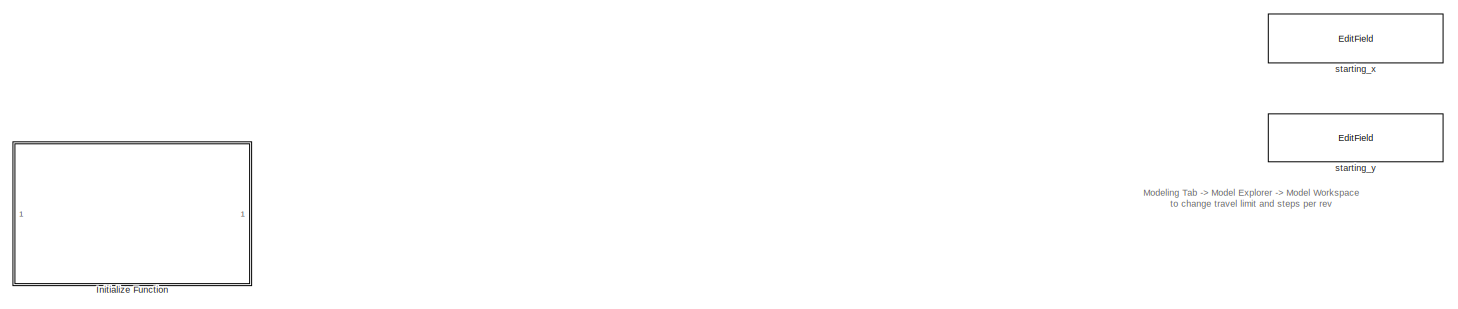
[diagram: root canvas - part 1/5, top center region]
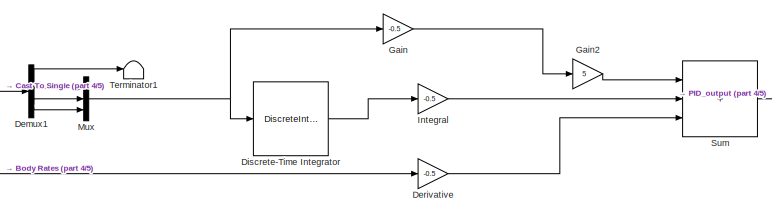
[diagram: root canvas - part 2/5, middle right region]
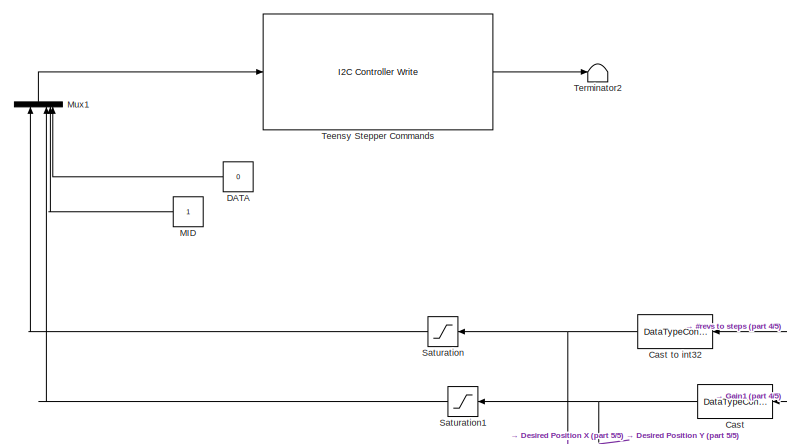
[diagram: root canvas - part 3/5, middle left region]
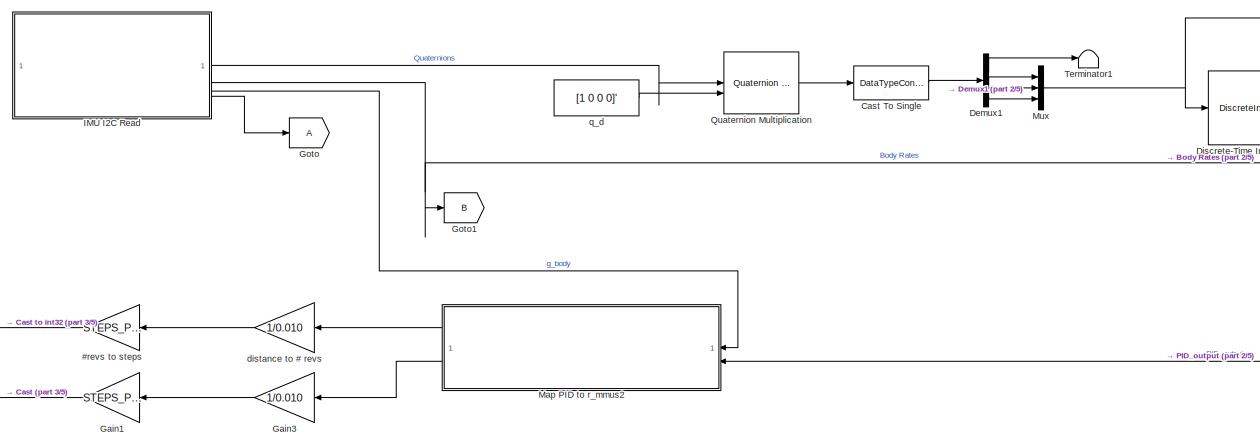
[diagram: root canvas - part 4/5, central region]
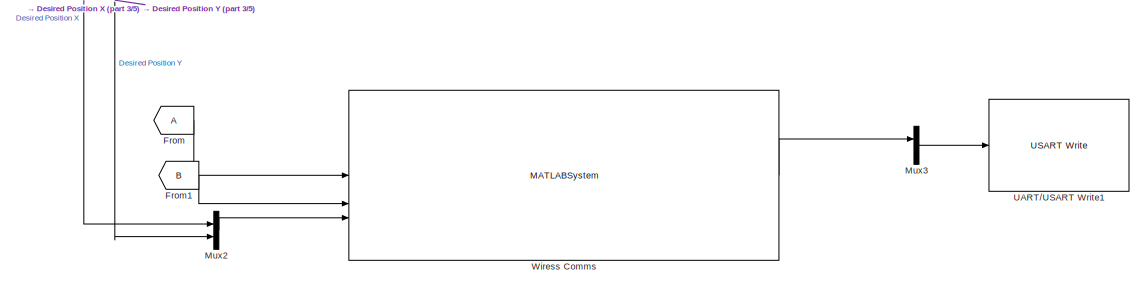
[diagram: root canvas - part 5/5, bottom center region]
MODEL slx_1a2bb7b88ea9
KIND model
CONFIG AbsTol = auto
CONFIG EnableMultiTasking = on
CONFIG FixedStep = 0.10
CONFIG MaxStep = auto
CONFIG MinStep = auto
CONFIG RelTol = 1e-3
CONFIG SampleTimeConstraint = Unconstrained
CONFIG SolverName = FixedStepAuto
CONFIG StartTime = 0.0
CONFIG StopTime = inf
WORKSPACE source: mxarray member
WORKSPACE STEPS_PER_REV = 3200
WORKSPACE TRAVEL_LIMIT = 22400
WORKSPACE starting_x = 0
WORKSPACE starting_y = 4800
BLOCK [Gain] #revs to steps
  Gain = STEPS_PER_REV
  NameLocation = top
BLOCK [DataTypeConversion] Cast
  NameLocation = top
  OutDataTypeStr = int32
  RndMeth = Floor
  SaturateOnIntegerOverflow = off
BLOCK [DataTypeConversion] Cast To Single
  OutDataTypeStr = single
  RndMeth = Floor
  SaturateOnIntegerOverflow = off
BLOCK [DataTypeConversion] Cast to int32
  NameLocation = top
  OutDataTypeStr = int32
  RndMeth = Floor
  SaturateOnIntegerOverflow = off
BLOCK [Constant] DATA
  NameLocation = top
  OutDataTypeStr = int32
  Value = 0
BLOCK [Demux] Demux1
BLOCK [Gain] Derivative
  Gain = -0.5
BLOCK [DiscreteIntegrator] Discrete-Time Integrator
  ICPrevOutput = DiscIntNeverNeededParam
  ICPrevScaledInput = DiscIntNeverNeededParam
  InitialCondition = [0,0,0]'
  InitialConditionSetting = Auto
  IntegratorMethod = Integration: Trapezoidal
  OutDataTypeStr = single
  SampleTime = -1
BLOCK [From] From
BLOCK [From] From1
  GotoTag = B
BLOCK [Gain] Gain
  Gain = -0.5
  ParamDataTypeStr = single
BLOCK [Gain] Gain1
  Gain = STEPS_PER_REV
  NameLocation = top
BLOCK [Gain] Gain2
  Gain = 5
BLOCK [Gain] Gain3
  Gain = 1/0.010
  NameLocation = top
BLOCK [Goto] Goto
BLOCK [Goto] Goto1
  GotoTag = B
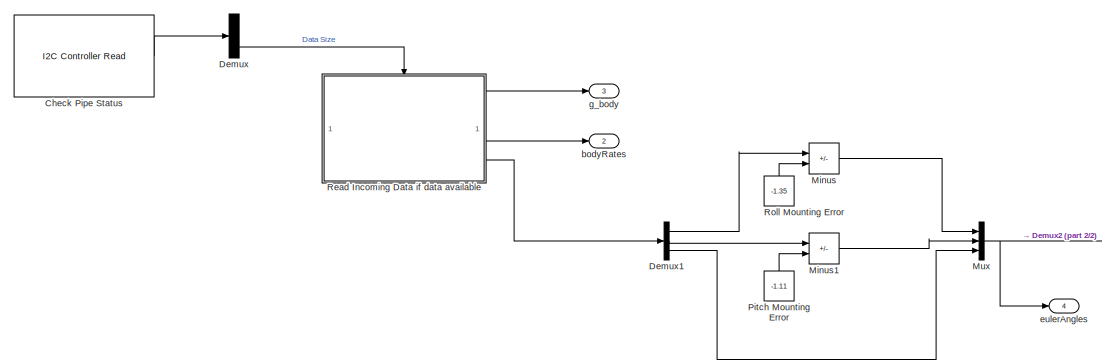
[diagram: IMU I2C Read - part 1/2, left side, full height]
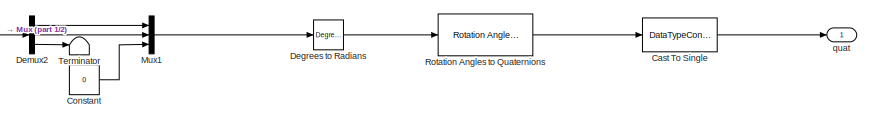
[diagram: IMU I2C Read - part 2/2, bottom right region]
BLOCK [SubSystem] IMU I2C Read
BLOCK [DataTypeConversion] IMU I2C Read/Cast To Single
  OutDataTypeStr = single
  RndMeth = Floor
  SaturateOnIntegerOverflow = off
BLOCK [Reference] IMU I2C Read/Check Pipe Status  REF=stm32blockslib/I2C Controller Read
  LibrarySourceBlock = stm32f4xxblockslib/I2C Controller Read
  SourceBlock = stm32blockslib/I2C Controller Read
  SourceType = stm32cube.blocks.I2CControllerRead
BLOCK [Constant] IMU I2C Read/Constant
  OutDataTypeStr = single
  Value = 0
BLOCK [Reference] IMU I2C Read/Degrees to Radians  REF=simulink_extras/Transformations/Degrees to
Radians
  SourceBlock = simulink_extras/Transformations/Degrees to\nRadians
  SourceType = DegreesToRadians
BLOCK [Demux] IMU I2C Read/Demux
BLOCK [Demux] IMU I2C Read/Demux1
  Outputs = 3
BLOCK [Demux] IMU I2C Read/Demux2
  Outputs = 3
BLOCK [Sum] IMU I2C Read/Minus
  IconShape = rectangular
  Inputs = +-
BLOCK [Sum] IMU I2C Read/Minus1
  IconShape = rectangular
  Inputs = +-
BLOCK [Mux] IMU I2C Read/Mux
  DisplayOption = bar
  Inputs = 3
BLOCK [Mux] IMU I2C Read/Mux1
  DisplayOption = bar
  Inputs = 3
BLOCK [Constant] IMU I2C Read/Pitch Mounting Error
  NameLocation = right
  OutDataTypeStr = single
  Value = -1.11
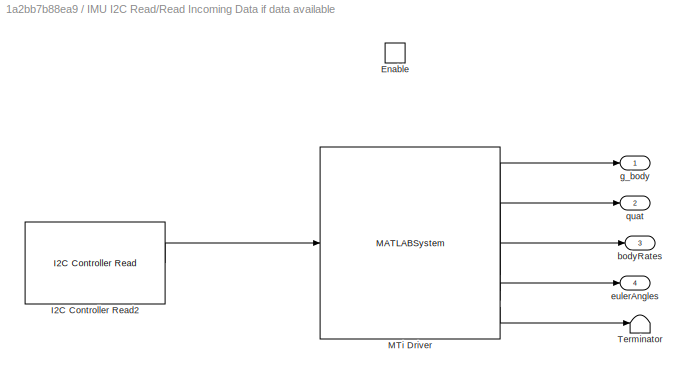
BLOCK [SubSystem] IMU I2C Read/Read Incoming Data if data available
  TreatAsAtomicUnit = on
BLOCK [EnablePort] IMU I2C Read/Read Incoming Data if data available/Enable
BLOCK [Reference] IMU I2C Read/Read Incoming Data if data available/I2C Controller Read2  REF=stm32blockslib/I2C Controller Read
  SourceBlock = stm32blockslib/I2C Controller Read
  SourceType = stm32cube.blocks.I2CControllerRead
BLOCK [MATLABSystem] IMU I2C Read/Read Incoming Data if data available/MTi Driver
  MaskDisplay = disp('MTi Driver');\nport_label('input',1,'bytesIn');\nport_label('output',1,'g_body');\nport_label('output',2,'quat');\nport_label('output',3,'bodyRates');\nport_label('output',4,'eulerAngles');\nport_label('output',5,'debug');
  MaskType = MTi_Driver_Sys_Obj
  System = MTi_Driver_Sys_Obj
BLOCK [Terminator] IMU I2C Read/Read Incoming Data if data available/Terminator
BLOCK [Outport] IMU I2C Read/Read Incoming Data if data available/bodyRates
  Port = 3
BLOCK [Outport] IMU I2C Read/Read Incoming Data if data available/eulerAngles
  Port = 4
BLOCK [Outport] IMU I2C Read/Read Incoming Data if data available/g_body
BLOCK [Outport] IMU I2C Read/Read Incoming Data if data available/quat
  Port = 2
BLOCK [Constant] IMU I2C Read/Roll Mounting Error
  NameLocation = right
  OutDataTypeStr = single
  Value = -1.35
BLOCK [Reference] IMU I2C Read/Rotation Angles to Quaternions  REF=sharedtransform/Rotation Angles to Quaternions
  AttributesFormatString = Rotation Order: %<rotationOrder>
  LibrarySourceBlock = aerolibtransform2/Rotation Angles to Quaternions
  SourceBlock = sharedtransform/Rotation Angles to Quaternions
  SourceType = Ang2Quat
BLOCK [Terminator] IMU I2C Read/Terminator
BLOCK [Outport] IMU I2C Read/bodyRates
  Port = 2
BLOCK [Outport] IMU I2C Read/eulerAngles
  Port = 4
BLOCK [Outport] IMU I2C Read/g_body
  Port = 3
BLOCK [Outport] IMU I2C Read/quat
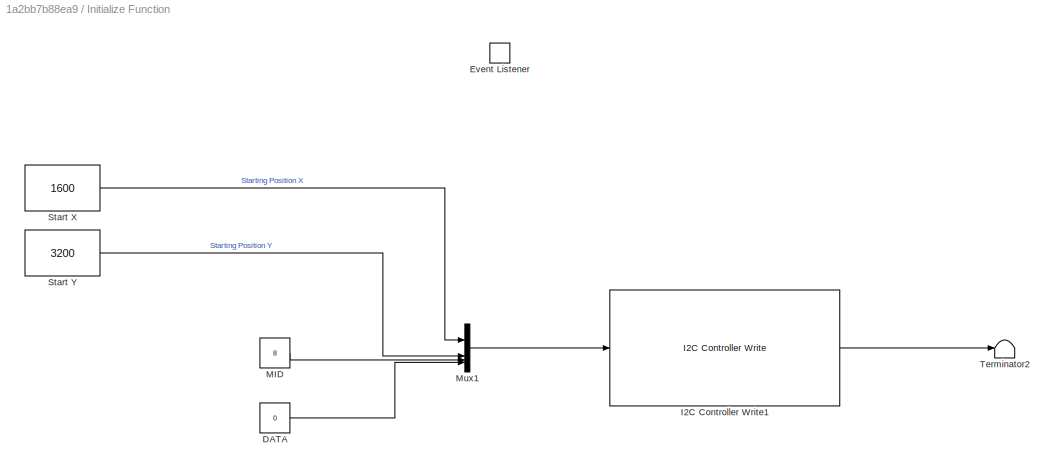
BLOCK [SubSystem] Initialize Function
  TreatAsAtomicUnit = on
BLOCK [Constant] Initialize Function/DATA
  OutDataTypeStr = int32
  Value = 0
BLOCK [EventListener] Initialize Function/Event Listener
  DisableCoverage = on
  EventName = reset
BLOCK [Reference] Initialize Function/I2C Controller Write1  REF=stm32blockslib/I2C Controller Write
  LibrarySourceBlock = stm32f4xxblockslib/I2C Controller Write
  SourceBlock = stm32blockslib/I2C Controller Write
  SourceType = stm32cube.blocks.I2CControllerWrite
BLOCK [Constant] Initialize Function/MID
  OutDataTypeStr = int32
  Value = 8
BLOCK [Mux] Initialize Function/Mux1
  DisplayOption = bar
BLOCK [Constant] Initialize Function/Start X
  OutDataTypeStr = int32
  Value = 1600
BLOCK [Constant] Initialize Function/Start Y
  OutDataTypeStr = int32
  Value = 3200
BLOCK [Terminator] Initialize Function/Terminator2
BLOCK [Gain] Integral
  Gain = -0.5
BLOCK [Constant] MID
  NameLocation = top
  OutDataTypeStr = int32
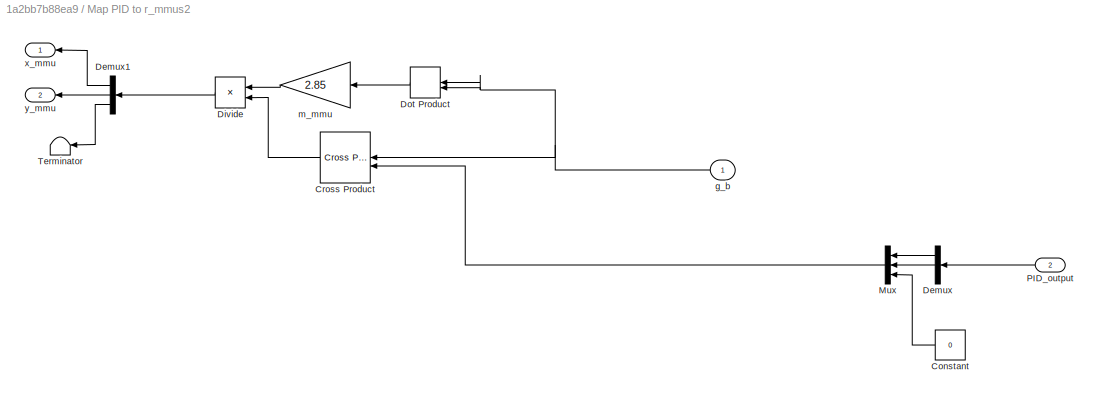
BLOCK [SubSystem] Map PID to r_mmus2
BLOCK [Constant] Map PID to r_mmus2/Constant
  NameLocation = top
  OutDataTypeStr = single
  Value = 0
BLOCK [Reference] Map PID to r_mmus2/Cross Product  REF=matrix_library/Cross Product
  NameLocation = top
  SourceBlock = matrix_library/Cross Product
  SourceType = CrossProduct
BLOCK [Demux] Map PID to r_mmus2/Demux
  NameLocation = top
  Outputs = 3
BLOCK [Demux] Map PID to r_mmus2/Demux1
  NameLocation = top
  Outputs = 3
BLOCK [Product] Map PID to r_mmus2/Divide
  Inputs = /*
  NameLocation = top
BLOCK [DotProduct] Map PID to r_mmus2/Dot Product
  NameLocation = top
  OutDataTypeStr = Inherit: Inherit via internal rule
BLOCK [Mux] Map PID to r_mmus2/Mux
  DisplayOption = bar
  Inputs = 3
  NameLocation = top
BLOCK [Inport] Map PID to r_mmus2/PID_output
  Port = 2
BLOCK [Terminator] Map PID to r_mmus2/Terminator
  NameLocation = top
BLOCK [Inport] Map PID to r_mmus2/g_b
BLOCK [Gain] Map PID to r_mmus2/m_mmu
  Gain = 2.85
  NameLocation = top
BLOCK [Outport] Map PID to r_mmus2/x_mmu
  NameLocation = top
BLOCK [Outport] Map PID to r_mmus2/y_mmu
  NameLocation = top
  Port = 2
BLOCK [Mux] Mux
  DisplayOption = bar
  Inputs = 3
BLOCK [Mux] Mux1
  DisplayOption = bar
  NameLocation = right
BLOCK [Mux] Mux2
  DisplayOption = bar
  Inputs = 2
BLOCK [Mux] Mux3
  DisplayOption = bar
  Inputs = 2
BLOCK [Reference] Quaternion Multiplication  REF=aerolibutil/Quaternion
Multiplication
  SourceBlock = aerolibutil/Quaternion\nMultiplication
  SourceType = Quaternion Multiplication
BLOCK [Saturate] Saturation
  LowerLimit = -TRAVEL_LIMIT - starting_x
  NameLocation = top
  UpperLimit = TRAVEL_LIMIT - starting_x
BLOCK [Saturate] Saturation1
  LowerLimit = -TRAVEL_LIMIT - starting_y
  NameLocation = top
  UpperLimit = TRAVEL_LIMIT - starting_y
BLOCK [Sum] Sum
  IconShape = rectangular
  Inputs = +++
BLOCK [Reference] Teensy Stepper Commands  REF=stm32blockslib/I2C Controller Write
  LibrarySourceBlock = stm32f4xxblockslib/I2C Controller Write
  SourceBlock = stm32blockslib/I2C Controller Write
  SourceType = stm32cube.blocks.I2CControllerWrite
BLOCK [Terminator] Terminator1
BLOCK [Terminator] Terminator2
BLOCK [Reference] UART//USART Write1  REF=stm32blockslib/UART//USART Write
  LibrarySourceBlock = stm32f4xxblockslib/UART//USART Write
  SourceBlock = stm32blockslib/UART//USART Write
  SourceType = stm32cube.blocks.UARTWrite
BLOCK [MATLABSystem] Wiress Comms
  MaskDisplay = disp('Wireless Comms Driver');\nport_label('input',1,'eulerAnglesTx');\nport_label('input',2,'bodyRatesTx');\nport_label('input',3,'posTx');\nport_label('output',1,'txBuffer');\nport_label('output',2,'debug');
  MaskType = Comm_Driver_Sys_Obj
  System = Comm_Driver_Sys_Obj
BLOCK [Gain] distance to # revs
  Gain = 1/0.010
  NameLocation = top
BLOCK [Constant] q_d
  OutDataTypeStr = single
  Value = [1 0 0 0]'
BLOCK [EditField] starting_x
  Alignment = Center
  LabelPosition = Hide
  ShowInitialText = on
BLOCK [EditField] starting_y
  Alignment = Center
  LabelPosition = Hide
  ShowInitialText = on
ANNOTATION (root): Modeling Tab -> Model Explorer -> Model Workspace to change travel limit and steps per rev
LINE #revs to steps:1 -> Cast to int32:1
LINE Cast To Single:1 -> Demux1:1
NET Cast to int32:1 -> Mux2:1, Saturation:1
NET Cast:1 -> Mux2:2, Saturation1:1
LINE DATA:1 -> Mux1:4
LINE Demux1:1 -> Terminator1:1
LINE Demux1:2 -> Mux:1
LINE Demux1:3 -> Mux:2
LINE Demux1:4 -> Mux:3
LINE Derivative:1 -> Sum:3
LINE Discrete-Time Integrator:1 -> Integral:1
LINE From1:1 -> Wiress Comms:2
LINE From:1 -> Wiress Comms:1
LINE Gain1:1 -> Cast:1
LINE Gain2:1 -> Sum:1
LINE Gain3:1 -> Gain1:1
LINE Gain:1 -> Gain2:1
LINE IMU I2C Read/Cast To Single:1 -> IMU I2C Read/quat:1
LINE IMU I2C Read/Check Pipe Status:1 -> IMU I2C Read/Demux:1
LINE IMU I2C Read/Constant:1 -> IMU I2C Read/Mux1:3
LINE IMU I2C Read/Degrees to Radians:1 -> IMU I2C Read/Rotation Angles to Quaternions:1
LINE IMU I2C Read/Demux1:1 -> IMU I2C Read/Minus:1
LINE IMU I2C Read/Demux1:2 -> IMU I2C Read/Minus1:1
LINE IMU I2C Read/Demux1:3 -> IMU I2C Read/Mux:3
LINE IMU I2C Read/Demux2:1 -> IMU I2C Read/Mux1:1
LINE IMU I2C Read/Demux2:2 -> IMU I2C Read/Mux1:2
LINE IMU I2C Read/Demux2:3 -> IMU I2C Read/Terminator:1
LINE IMU I2C Read/Demux:3 -> IMU I2C Read/Read Incoming Data if data available:enable
LINE IMU I2C Read/Minus1:1 -> IMU I2C Read/Mux:2
LINE IMU I2C Read/Minus:1 -> IMU I2C Read/Mux:1
LINE IMU I2C Read/Mux1:1 -> IMU I2C Read/Degrees to Radians:1
NET IMU I2C Read/Mux:1 -> IMU I2C Read/Demux2:1, IMU I2C Read/eulerAngles:1
LINE IMU I2C Read/Pitch Mounting Error:1 -> IMU I2C Read/Minus1:2
LINE IMU I2C Read/Read Incoming Data if data available/I2C Controller Read2:1 -> IMU I2C Read/Read Incoming Data if data available/MTi Driver:1
LINE IMU I2C Read/Read Incoming Data if data available/MTi Driver:1 -> IMU I2C Read/Read Incoming Data if data available/g_body:1
LINE IMU I2C Read/Read Incoming Data if data available/MTi Driver:2 -> IMU I2C Read/Read Incoming Data if data available/quat:1
LINE IMU I2C Read/Read Incoming Data if data available/MTi Driver:3 -> IMU I2C Read/Read Incoming Data if data available/bodyRates:1
LINE IMU I2C Read/Read Incoming Data if data available/MTi Driver:4 -> IMU I2C Read/Read Incoming Data if data available/eulerAngles:1
LINE IMU I2C Read/Read Incoming Data if data available/MTi Driver:5 -> IMU I2C Read/Read Incoming Data if data available/Terminator:1
LINE IMU I2C Read/Read Incoming Data if data available:1 -> IMU I2C Read/g_body:1
LINE IMU I2C Read/Read Incoming Data if data available:3 -> IMU I2C Read/bodyRates:1
LINE IMU I2C Read/Read Incoming Data if data available:4 -> IMU I2C Read/Demux1:1
LINE IMU I2C Read/Roll Mounting Error:1 -> IMU I2C Read/Minus:2
LINE IMU I2C Read/Rotation Angles to Quaternions:1 -> IMU I2C Read/Cast To Single:1
LINE IMU I2C Read:1 -> Quaternion Multiplication:1
NET IMU I2C Read:2 -> Derivative:1, Goto1:1
LINE IMU I2C Read:3 -> Map PID to r_mmus2:1
LINE IMU I2C Read:4 -> Goto:1
LINE Initialize Function/DATA:1 -> Initialize Function/Mux1:4
LINE Initialize Function/I2C Controller Write1:1 -> Initialize Function/Terminator2:1
LINE Initialize Function/MID:1 -> Initialize Function/Mux1:3
LINE Initialize Function/Mux1:1 -> Initialize Function/I2C Controller Write1:1
LINE Initialize Function/Start X:1 -> Initialize Function/Mux1:1
LINE Initialize Function/Start Y:1 -> Initialize Function/Mux1:2
LINE Integral:1 -> Sum:2
LINE MID:1 -> Mux1:3
LINE Map PID to r_mmus2/Constant:1 -> Map PID to r_mmus2/Mux:3
LINE Map PID to r_mmus2/Cross Product:1 -> Map PID to r_mmus2/Divide:2
LINE Map PID to r_mmus2/Demux1:1 -> Map PID to r_mmus2/x_mmu:1
LINE Map PID to r_mmus2/Demux1:2 -> Map PID to r_mmus2/y_mmu:1
LINE Map PID to r_mmus2/Demux1:3 -> Map PID to r_mmus2/Terminator:1
LINE Map PID to r_mmus2/Demux:1 -> Map PID to r_mmus2/Mux:1
LINE Map PID to r_mmus2/Demux:2 -> Map PID to r_mmus2/Mux:2
LINE Map PID to r_mmus2/Divide:1 -> Map PID to r_mmus2/Demux1:1
LINE Map PID to r_mmus2/Dot Product:1 -> Map PID to r_mmus2/m_mmu:1
LINE Map PID to r_mmus2/Mux:1 -> Map PID to r_mmus2/Cross Product:2
LINE Map PID to r_mmus2/PID_output:1 -> Map PID to r_mmus2/Demux:1
NET Map PID to r_mmus2/g_b:1 -> Map PID to r_mmus2/Cross Product:1, Map PID to r_mmus2/Dot Product:1, Map PID to r_mmus2/Dot Product:2
LINE Map PID to r_mmus2/m_mmu:1 -> Map PID to r_mmus2/Divide:1
LINE Map PID to r_mmus2:1 -> distance to # revs:1
LINE Map PID to r_mmus2:2 -> Gain3:1
LINE Mux1:1 -> Teensy Stepper Commands:1
LINE Mux2:1 -> Wiress Comms:3
LINE Mux3:1 -> UART//USART Write1:1
NET Mux:1 -> Discrete-Time Integrator:1, Gain:1
LINE Quaternion Multiplication:1 -> Cast To Single:1
LINE Saturation1:1 -> Mux1:2
LINE Saturation:1 -> Mux1:1
LINE Sum:1 -> Map PID to r_mmus2:2
LINE Teensy Stepper Commands:1 -> Terminator2:1
LINE Wiress Comms:1 -> Mux3:1
LINE distance to # revs:1 -> #revs to steps:1
LINE q_d:1 -> Quaternion Multiplication:2
note: NET lines group one-source signal fan-out (src -> all destinations, sorted); 1:1 wires keep LINE
